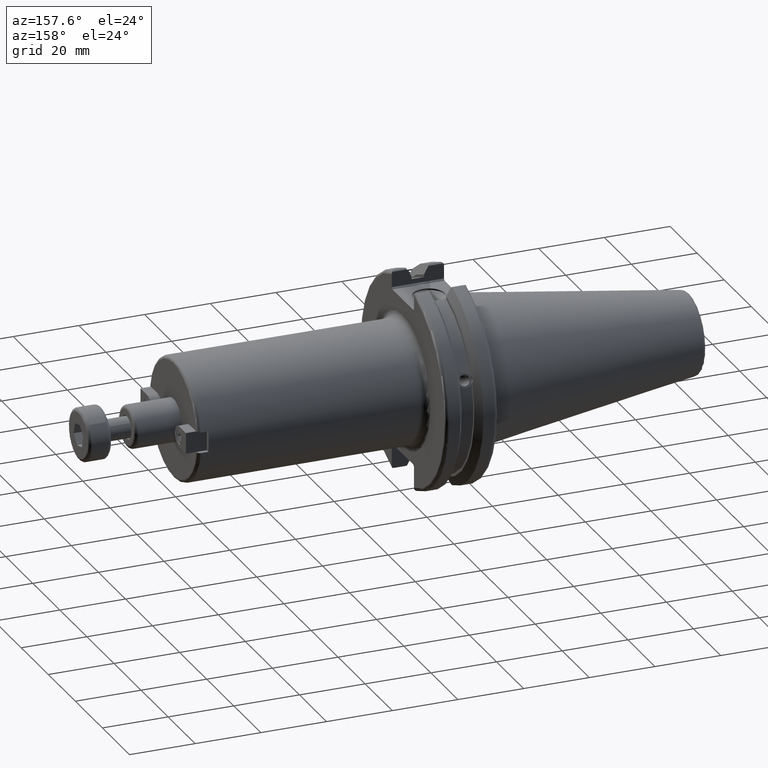
[diagram: clean part render]
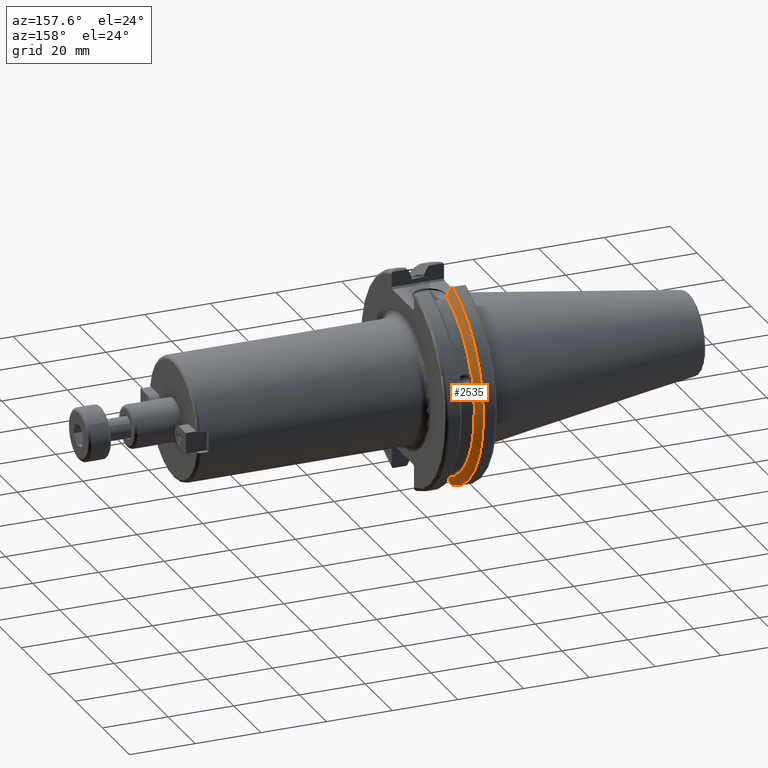
[diagram: same view with one face highlighted and labeled with its STEP entity id]
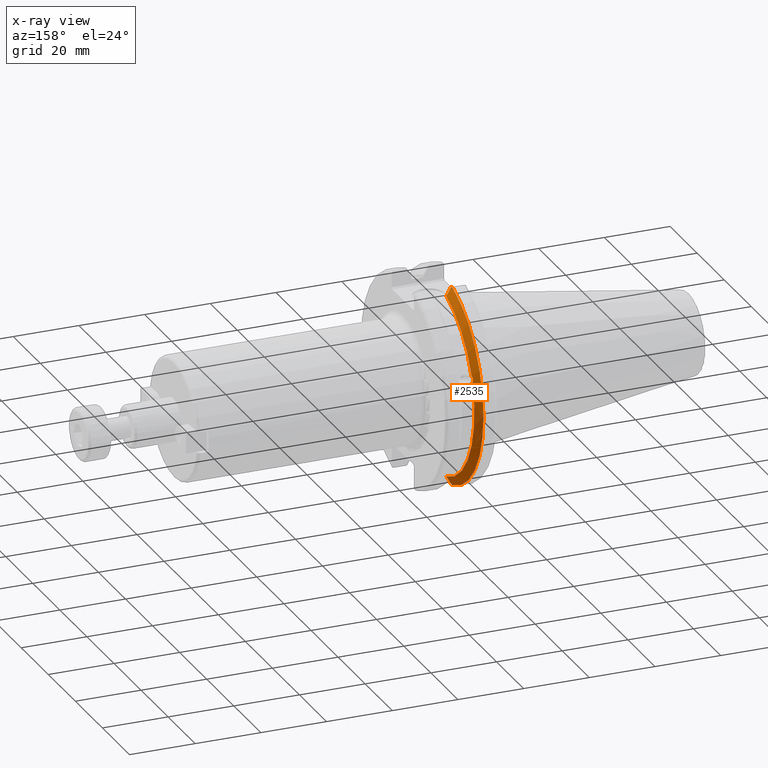
[diagram: x-ray of the same camera — body ghosted, the highlighted face saturated]
A machine part, auxiliary view. The second image highlights one B-rep face of the part: STEP entity #2535.
The next image is the same camera in x-ray: the body ghosted, the highlighted face saturated — about 0% of this face is hidden behind the body in this view.
In plain terms, the highlighted conical surface has half-angle 60 deg.
Its self-contained STEP definition (entity closure, byte-faithful):
#61=(
BOUNDED_CURVE()
B_SPLINE_CURVE(2,(#4433,#4434,#4435),.UNSPECIFIED.,.F.,.F.)
B_SPLINE_CURVE_WITH_KNOTS((3,3),(0.,0.276549142797088),.UNSPECIFIED.)
CURVE()
GEOMETRIC_REPRESENTATION_ITEM()
RATIONAL_B_SPLINE_CURVE((1.,1.00095203903867,1.00031614444995))
REPRESENTATION_ITEM('')
);
#66=(
BOUNDED_CURVE()
B_SPLINE_CURVE(2,(#4575,#4576,#4577),.UNSPECIFIED.,.F.,.F.)
B_SPLINE_CURVE_WITH_KNOTS((3,3),(0.,0.0639048713676096),.UNSPECIFIED.)
CURVE()
GEOMETRIC_REPRESENTATION_ITEM()
RATIONAL_B_SPLINE_CURVE((1.,1.00028444218277,1.00047644010564))
REPRESENTATION_ITEM('')
);
#67=(
BOUNDED_CURVE()
B_SPLINE_CURVE(2,(#4606,#4607,#4608),.UNSPECIFIED.,.F.,.F.)
B_SPLINE_CURVE_WITH_KNOTS((3,3),(0.0550586467393311,0.331607789535851),
 .UNSPECIFIED.)
CURVE()
GEOMETRIC_REPRESENTATION_ITEM()
RATIONAL_B_SPLINE_CURVE((1.00031614445049,1.00095203904028,1.))
REPRESENTATION_ITEM('')
);
#68=(
BOUNDED_CURVE()
B_SPLINE_CURVE(2,(#4623,#4624,#4625),.UNSPECIFIED.,.F.,.F.)
B_SPLINE_CURVE_WITH_KNOTS((3,3),(0.329353533631214,0.393258405001024),
 .UNSPECIFIED.)
CURVE()
GEOMETRIC_REPRESENTATION_ITEM()
RATIONAL_B_SPLINE_CURVE((1.00047644010576,1.00028444218285,1.))
REPRESENTATION_ITEM('')
);
#160=CONICAL_SURFACE('',#2881,30.3546886482472,1.0471975511966);
#245=CIRCLE('',#2815,28.9593772964944);
#268=CIRCLE('',#2872,31.75);
#271=CIRCLE('',#2882,28.9593772964944);
#407=FACE_OUTER_BOUND('',#570,.T.);
#570=EDGE_LOOP('',(#2106,#2107,#2108,#2109,#2110,#2111,#2112,#2113));
#994=B_SPLINE_CURVE_WITH_KNOTS('',3,(#4248,#4249,#4250,#4251,#4252,#4253,
#4254,#4255,#4256,#4257,#4258,#4259,#4260,#4261),.UNSPECIFIED.,.F.,.F.,
(4,2,2,2,2,2,4),(0.451995700189025,0.464547828547662,0.504528771685167,
0.544509714822672,0.584490657960178,0.624471601097683,0.637023729456319),
 .UNSPECIFIED.);
#1114=VERTEX_POINT('',#4245);
#1115=VERTEX_POINT('',#4247);
#1127=VERTEX_POINT('',#4322);
#1155=VERTEX_POINT('',#4430);
#1156=VERTEX_POINT('',#4432);
#1177=VERTEX_POINT('',#4573);
#1183=VERTEX_POINT('',#4605);
#1184=VERTEX_POINT('',#4615);
#1398=EDGE_CURVE('',#1115,#1114,#994,.T.);
#1414=EDGE_CURVE('',#1115,#1127,#245,.T.);
#1454=EDGE_CURVE('',#1156,#1155,#61,.T.);
#1489=EDGE_CURVE('',#1177,#1155,#66,.T.);
#1503=EDGE_CURVE('',#1183,#1127,#67,.T.);
#1508=EDGE_CURVE('',#1177,#1184,#268,.T.);
#1510=EDGE_CURVE('',#1183,#1184,#68,.T.);
#1515=EDGE_CURVE('',#1156,#1114,#271,.T.);
#2106=ORIENTED_EDGE('',*,*,#1398,.T.);
#2107=ORIENTED_EDGE('',*,*,#1515,.F.);
#2108=ORIENTED_EDGE('',*,*,#1454,.T.);
#2109=ORIENTED_EDGE('',*,*,#1489,.F.);
#2110=ORIENTED_EDGE('',*,*,#1508,.T.);
#2111=ORIENTED_EDGE('',*,*,#1510,.F.);
#2112=ORIENTED_EDGE('',*,*,#1503,.T.);
#2113=ORIENTED_EDGE('',*,*,#1414,.F.);
#2535=ADVANCED_FACE('',(#407),#160,.T.);
#2815=AXIS2_PLACEMENT_3D('',#4323,#3297,#3298);
#2872=AXIS2_PLACEMENT_3D('',#4617,#3458,#3459);
#2881=AXIS2_PLACEMENT_3D('',#4635,#3479,#3480);
#2882=AXIS2_PLACEMENT_3D('',#4636,#3481,#3482);
#3297=DIRECTION('center_axis',(1.,0.,0.));
#3298=DIRECTION('ref_axis',(0.,0.,-1.));
#3458=DIRECTION('center_axis',(1.,0.,0.));
#3459=DIRECTION('ref_axis',(0.,0.,-1.));
#3479=DIRECTION('center_axis',(-1.,0.,0.));
#3480=DIRECTION('ref_axis',(0.,1.,0.));
#3481=DIRECTION('center_axis',(1.,0.,0.));
#3482=DIRECTION('ref_axis',(0.,0.,-1.));
#4245=CARTESIAN_POINT('',(9.2191,27.4956274489925,9.09043478536247));
#4247=CARTESIAN_POINT('',(9.2191,26.9060914640648,10.7101715919071));
#4248=CARTESIAN_POINT('Ctrl Pts',(9.2191,26.9060914640648,10.7101715919071));
#4249=CARTESIAN_POINT('Ctrl Pts',(9.20497959280038,26.9406927482839,10.6893765730703));
#4250=CARTESIAN_POINT('Ctrl Pts',(9.19150701821434,26.9744191989197,10.6676007180673));
#4251=CARTESIAN_POINT('Ctrl Pts',(9.13811855884095,27.1113422433188,10.5723885976054));
#4252=CARTESIAN_POINT('Ctrl Pts',(9.09998029158246,27.2180531796526,10.4801333026531));
#4253=CARTESIAN_POINT('Ctrl Pts',(9.04778935539424,27.3968610665578,10.2639559818059));
#4254=CARTESIAN_POINT('Ctrl Pts',(9.0341,27.4684373304961,10.139516340139));
#4255=CARTESIAN_POINT('Ctrl Pts',(9.0341,27.559599249844,9.8890510252165));
#4256=CARTESIAN_POINT('Ctrl Pts',(9.04778935539424,27.5847569104121,9.74771639360671));
#4257=CARTESIAN_POINT('Ctrl Pts',(9.09998029158246,27.5867382255984,9.46717946402648));
#4258=CARTESIAN_POINT('Ctrl Pts',(9.13811855884095,27.5642934663232,9.32791534028656));
#4259=CARTESIAN_POINT('Ctrl Pts',(9.19150701821433,27.5206055003512,9.16696618806878));
#4260=CARTESIAN_POINT('Ctrl Pts',(9.20497959280038,27.5087667900418,9.12860597076219));
#4261=CARTESIAN_POINT('Ctrl Pts',(9.21909999999999,27.4956274489925,9.09043478536247));
#4322=CARTESIAN_POINT('',(9.2191,8.19,27.7771386827498));
#4323=CARTESIAN_POINT('Origin',(9.2191,0.,0.));
#4430=CARTESIAN_POINT('',(7.88668530351255,8.19,-30.1755016258903));
#4432=CARTESIAN_POINT('',(9.2191,8.19,-27.7771386827498));
#4433=CARTESIAN_POINT('Ctrl Pts',(9.2191,8.19,-27.7771386827498));
#4434=CARTESIAN_POINT('Ctrl Pts',(8.58046356153227,8.19,-28.9303689539555));
#4435=CARTESIAN_POINT('Ctrl Pts',(7.88668530351255,8.19,-30.1755016258903));
#4573=CARTESIAN_POINT('',(7.60793323092436,8.67204822802685,-30.5427254764662));
#4575=CARTESIAN_POINT('Ctrl Pts',(7.60793323092436,8.67204822802685,-30.5427254764662));
#4576=CARTESIAN_POINT('Ctrl Pts',(7.74899148121625,8.42917748262648,-30.357706789263));
#4577=CARTESIAN_POINT('Ctrl Pts',(7.88668530351255,8.19,-30.1755016258903));
#4605=CARTESIAN_POINT('',(7.88668530351256,8.19,30.1755016258903));
#4606=CARTESIAN_POINT('Ctrl Pts',(7.88668530351256,8.19,30.1755016258903));
#4607=CARTESIAN_POINT('Ctrl Pts',(8.5804635615239,8.19,28.9303689539705));
#4608=CARTESIAN_POINT('Ctrl Pts',(9.2191,8.19,27.7771386827498));
#4615=CARTESIAN_POINT('',(7.60793323092436,8.67204822802685,30.5427254764662));
#4617=CARTESIAN_POINT('Origin',(7.60793323092436,0.,0.));
#4623=CARTESIAN_POINT('Ctrl Pts',(7.88668530351256,8.19,30.1755016258903));
#4624=CARTESIAN_POINT('Ctrl Pts',(7.7489914812116,8.42917748263465,30.3577067892692));
#4625=CARTESIAN_POINT('Ctrl Pts',(7.60793323092436,8.67204822802685,30.5427254764662));
#4635=CARTESIAN_POINT('Origin',(8.41351661546217,0.,0.));
#4636=CARTESIAN_POINT('Origin',(9.2191,0.,0.));